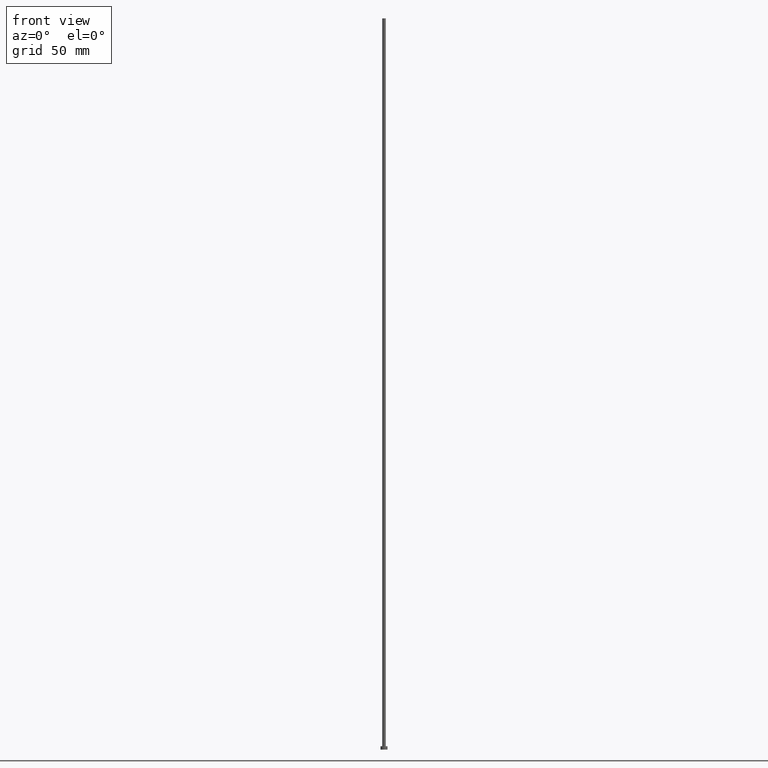
[diagram: clean part render]
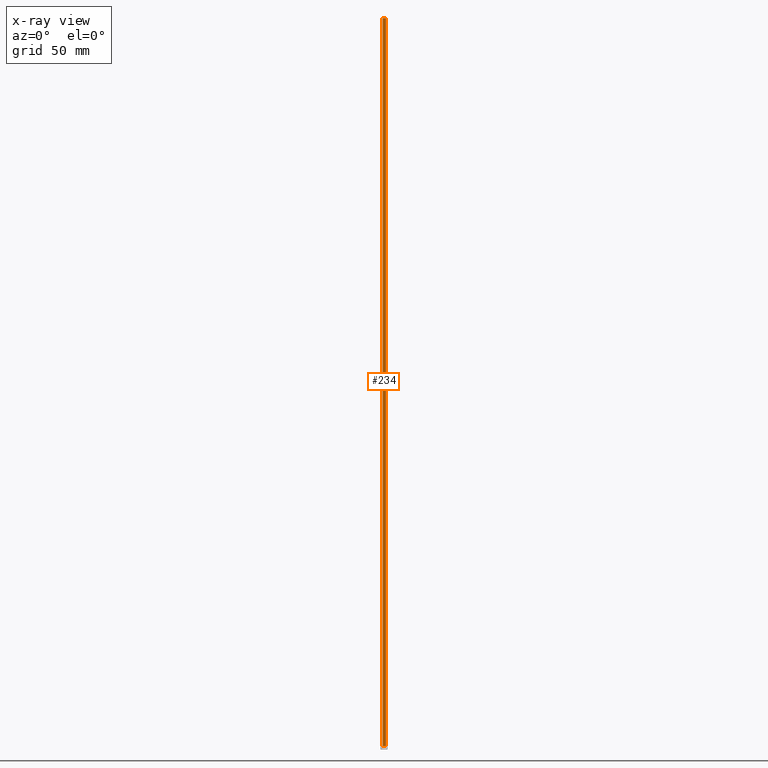
[diagram: x-ray — body ghosted, one internal face saturated and labeled with its STEP entity id]
A machine part, front view, then the same camera in x-ray: the body is ghosted and one INTERNAL B-rep face — a face not visible from any outside direction — is saturated and labeled: STEP entity #234.
In plain terms, the highlighted cylindrical surface (edge-blend (fillet) strip) has radius 0.75 mm, axis along (-0, -0, -1).
Its self-contained STEP definition (entity closure, byte-faithful):
#13 = ORIENTED_EDGE ( 'NONE', *, *, #65, .F. ) ;
#20 = EDGE_CURVE ( 'NONE', #48, #79, #176, .T. ) ;
#36 = CARTESIAN_POINT ( 'NONE',  ( 0.000000000000000000, 0.000000000000000000, 1.500000000000000000 ) ) ;
#37 = VERTEX_POINT ( 'NONE', #113 ) ;
#39 = FACE_OUTER_BOUND ( 'NONE', #94, .T. ) ;
#48 = VERTEX_POINT ( 'NONE', #138 ) ;
#50 = DIRECTION ( 'NONE',  ( -0.000000000000000000, -0.000000000000000000, -1.000000000000000000 ) ) ;
#54 = CARTESIAN_POINT ( 'NONE',  ( -0.7500000000000001110, 0.000000000000000000, 315.0000000000000000 ) ) ;
#59 = DIRECTION ( 'NONE',  ( -1.000000000000000000, 0.000000000000000000, 0.000000000000000000 ) ) ;
#62 = DIRECTION ( 'NONE',  ( -0.000000000000000000, -0.000000000000000000, -1.000000000000000000 ) ) ;
#65 = EDGE_CURVE ( 'NONE', #48, #137, #169, .T. ) ;
#68 = CARTESIAN_POINT ( 'NONE',  ( 0.7500000000000001110, 9.184850993605150903E-17, 315.0000000000000000 ) ) ;
#79 = VERTEX_POINT ( 'NONE', #183 ) ;
#88 = EDGE_CURVE ( 'NONE', #79, #37, #101, .T. ) ;
#94 = EDGE_LOOP ( 'NONE', ( #13, #246, #196, #132 ) ) ;
#101 = CIRCLE ( 'NONE', #213, 0.7500000000000001110 ) ;
#113 = CARTESIAN_POINT ( 'NONE',  ( -0.7500000000000001110, 0.000000000000000000, 1.500000000000000000 ) ) ;
#127 = DIRECTION ( 'NONE',  ( 1.000000000000000000, 0.000000000000000000, 0.000000000000000000 ) ) ;
#129 = DIRECTION ( 'NONE',  ( -0.000000000000000000, -0.000000000000000000, -1.000000000000000000 ) ) ;
#132 = ORIENTED_EDGE ( 'NONE', *, *, #192, .F. ) ;
#137 = VERTEX_POINT ( 'NONE', #54 ) ;
#138 = CARTESIAN_POINT ( 'NONE',  ( 0.7500000000000001110, 9.184850993605150903E-17, 315.0000000000000000 ) ) ;
#144 = DIRECTION ( 'NONE',  ( 0.000000000000000000, 0.000000000000000000, 1.000000000000000000 ) ) ;
#148 = AXIS2_PLACEMENT_3D ( 'NONE', #162, #144, #238 ) ;
#161 = AXIS2_PLACEMENT_3D ( 'NONE', #202, #129, #59 ) ;
#162 = CARTESIAN_POINT ( 'NONE',  ( 0.000000000000000000, 0.000000000000000000, 315.0000000000000000 ) ) ;
#169 = CIRCLE ( 'NONE', #148, 0.7500000000000001110 ) ;
#176 = LINE ( 'NONE', #68, #217 ) ;
#180 = DIRECTION ( 'NONE',  ( 0.000000000000000000, 0.000000000000000000, 1.000000000000000000 ) ) ;
#183 = CARTESIAN_POINT ( 'NONE',  ( 0.7500000000000001110, 9.184850993605150903E-17, 1.500000000000000000 ) ) ;
#192 = EDGE_CURVE ( 'NONE', #137, #37, #244, .T. ) ;
#196 = ORIENTED_EDGE ( 'NONE', *, *, #88, .T. ) ;
#202 = CARTESIAN_POINT ( 'NONE',  ( 0.000000000000000000, 0.000000000000000000, 315.0000000000000000 ) ) ;
#213 = AXIS2_PLACEMENT_3D ( 'NONE', #36, #180, #127 ) ;
#217 = VECTOR ( 'NONE', #50, 1000.000000000000000 ) ;
#226 = CARTESIAN_POINT ( 'NONE',  ( -0.7500000000000001110, 0.000000000000000000, 315.0000000000000000 ) ) ;
#233 = VECTOR ( 'NONE', #62, 1000.000000000000000 ) ;
#234 = ADVANCED_FACE ( 'NONE', ( #39 ), #241, .T. ) ;
#238 = DIRECTION ( 'NONE',  ( 1.000000000000000000, 0.000000000000000000, 0.000000000000000000 ) ) ;
#241 = CYLINDRICAL_SURFACE ( 'NONE', #161, 0.7500000000000001110 ) ;
#244 = LINE ( 'NONE', #226, #233 ) ;
#246 = ORIENTED_EDGE ( 'NONE', *, *, #20, .T. ) ;